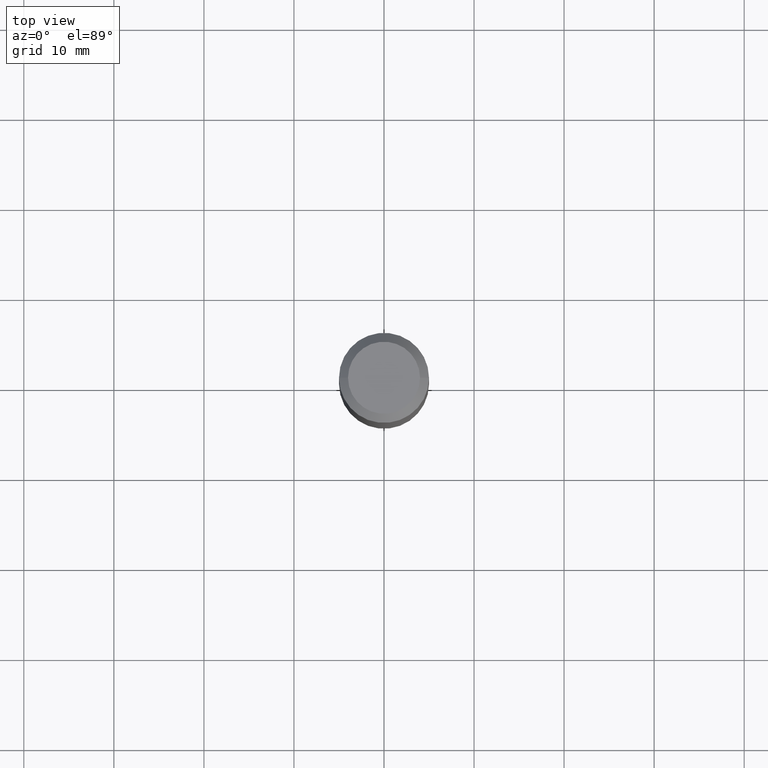
[diagram: clean part render]
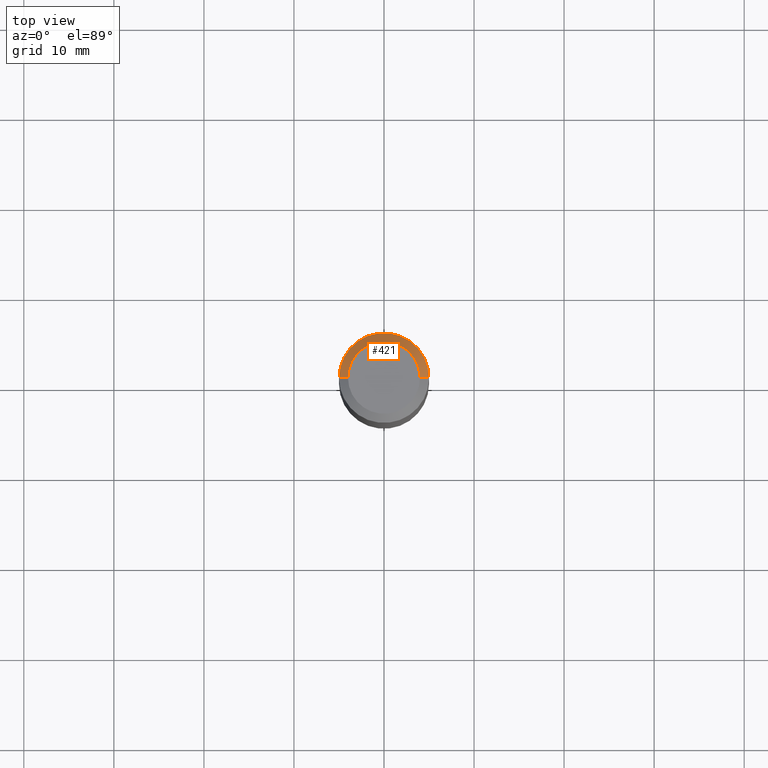
[diagram: same view with one face highlighted and labeled with its STEP entity id]
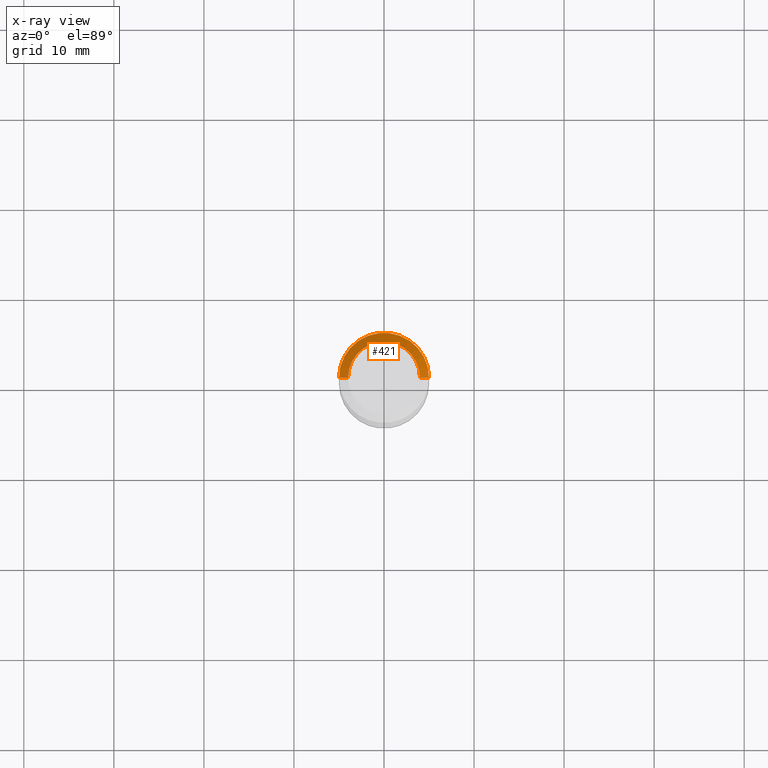
[diagram: x-ray of the same camera — body ghosted, the highlighted face saturated]
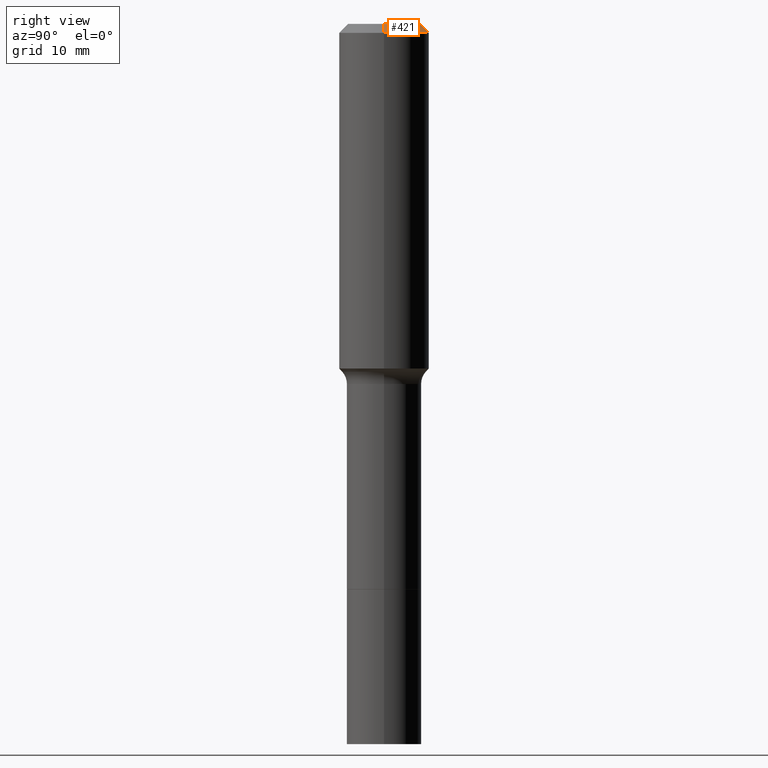
[diagram: same view with one face highlighted and labeled with its STEP entity id]
A machine part, top view. The second image highlights one B-rep face of the part: STEP entity #421.
The next image is the same camera in x-ray: the body ghosted, the highlighted face saturated — about 0% of this face is hidden behind the body in this view.
A second angle (right view) of the same face is appended — the face is thin or edge-on in the first view.
In plain terms, the highlighted conical surface has half-angle 45 deg.
Its self-contained STEP definition (entity closure, byte-faithful):
#15 = DIRECTION ( 'NONE',  ( 0.7071067811865453523, -7.319954787623248157E-15, -0.7071067811865496822 ) ) ;
#18 = CARTESIAN_POINT ( 'NONE',  ( 9.627810689950945397E-31, -1.374596203102555315E-16, -0.03937000000000025896 ) ) ;
#30 = CIRCLE ( 'NONE', #377, 0.1968500000000000250 ) ;
#33 = DIRECTION ( 'NONE',  ( -2.445468806185136597E-29, 3.491481338843145583E-15, 1.000000000000000000 ) ) ;
#54 = FACE_OUTER_BOUND ( 'NONE', #364, .T. ) ;
#63 = ORIENTED_EDGE ( 'NONE', *, *, #72, .F. ) ;
#72 = EDGE_CURVE ( 'NONE', #508, #172, #439, .T. ) ;
#87 = EDGE_CURVE ( 'NONE', #279, #406, #30, .T. ) ;
#105 = AXIS2_PLACEMENT_3D ( 'NONE', #438, #33, #479 ) ;
#110 = EDGE_CURVE ( 'NONE', #172, #406, #512, .T. ) ;
#125 = ORIENTED_EDGE ( 'NONE', *, *, #87, .T. ) ;
#137 = AXIS2_PLACEMENT_3D ( 'NONE', #18, #218, #339 ) ;
#142 = CARTESIAN_POINT ( 'NONE',  ( -0.1968500000000000250, -1.301235451839561360E-15, -0.03937000000000025896 ) ) ;
#153 = DIRECTION ( 'NONE',  ( 1.000000000000000000, -6.982962677686265922E-15, 0.000000000000000000 ) ) ;
#172 = VERTEX_POINT ( 'NONE', #518 ) ;
#214 = CARTESIAN_POINT ( 'NONE',  ( 0.1574800000000000089, -1.284169937930321189E-15, 3.855188123724205385E-18 ) ) ;
#218 = DIRECTION ( 'NONE',  ( 2.445468806185136597E-29, -3.491481338843145583E-15, -1.000000000000000000 ) ) ;
#221 = CARTESIAN_POINT ( 'NONE',  ( 0.1968500000000000250, -1.487948651171581601E-15, -0.03937000000000025896 ) ) ;
#232 = ORIENTED_EDGE ( 'NONE', *, *, #110, .F. ) ;
#271 = DIRECTION ( 'NONE',  ( -2.445468806185136597E-29, 3.491481338843145583E-15, 1.000000000000000000 ) ) ;
#279 = VERTEX_POINT ( 'NONE', #488 ) ;
#313 = DIRECTION ( 'NONE',  ( -0.7071067811865453523, 2.468850131082234184E-15, -0.7071067811865496822 ) ) ;
#339 = DIRECTION ( 'NONE',  ( -1.000000000000000000, 6.982962677686265922E-15, 0.000000000000000000 ) ) ;
#352 = VECTOR ( 'NONE', #15, 39.37007874015748143 ) ;
#354 = CARTESIAN_POINT ( 'NONE',  ( 9.627810689950945397E-31, -1.374596203102555315E-16, -0.03937000000000025896 ) ) ;
#364 = EDGE_LOOP ( 'NONE', ( #63, #428, #125, #232 ) ) ;
#377 = AXIS2_PLACEMENT_3D ( 'NONE', #354, #271, #153 ) ;
#384 = EDGE_CURVE ( 'NONE', #508, #279, #499, .T. ) ;
#406 = VERTEX_POINT ( 'NONE', #142 ) ;
#421 = ADVANCED_FACE ( 'NONE', ( #54 ), #498, .T. ) ;
#428 = ORIENTED_EDGE ( 'NONE', *, *, #384, .T. ) ;
#438 = CARTESIAN_POINT ( 'NONE',  ( -9.427742298522567634E-47, 1.346031739168368355E-32, 3.855188123715870730E-18 ) ) ;
#439 = CIRCLE ( 'NONE', #105, 0.1574800000000000089 ) ;
#455 = VECTOR ( 'NONE', #313, 39.37007874015748143 ) ;
#479 = DIRECTION ( 'NONE',  ( 1.000000000000000000, -6.982962677686265922E-15, 4.876223630392693006E-29 ) ) ;
#488 = CARTESIAN_POINT ( 'NONE',  ( 0.1968500000000000250, -1.512055823412797189E-15, -0.03937000000000025896 ) ) ;
#498 = CONICAL_SURFACE ( 'NONE', #137, 0.1968500000000000250, 0.7853981633974452814 ) ;
#499 = LINE ( 'NONE', #221, #352 ) ;
#508 = VERTEX_POINT ( 'NONE', #214 ) ;
#512 = LINE ( 'NONE', #514, #455 ) ;
#514 = CARTESIAN_POINT ( 'NONE',  ( -0.1968500000000000250, 1.237136582792286225E-15, -0.03937000000000025896 ) ) ;
#518 = CARTESIAN_POINT ( 'NONE',  ( -0.1574800000000000089, 1.168406772637159618E-15, 3.855188123707939751E-18 ) ) ;